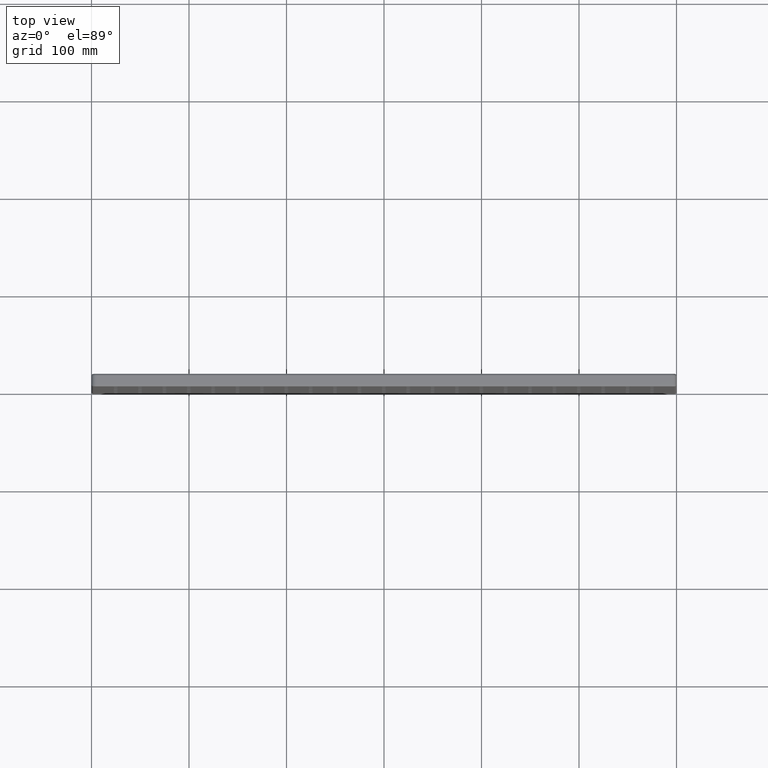
[diagram: clean part render]
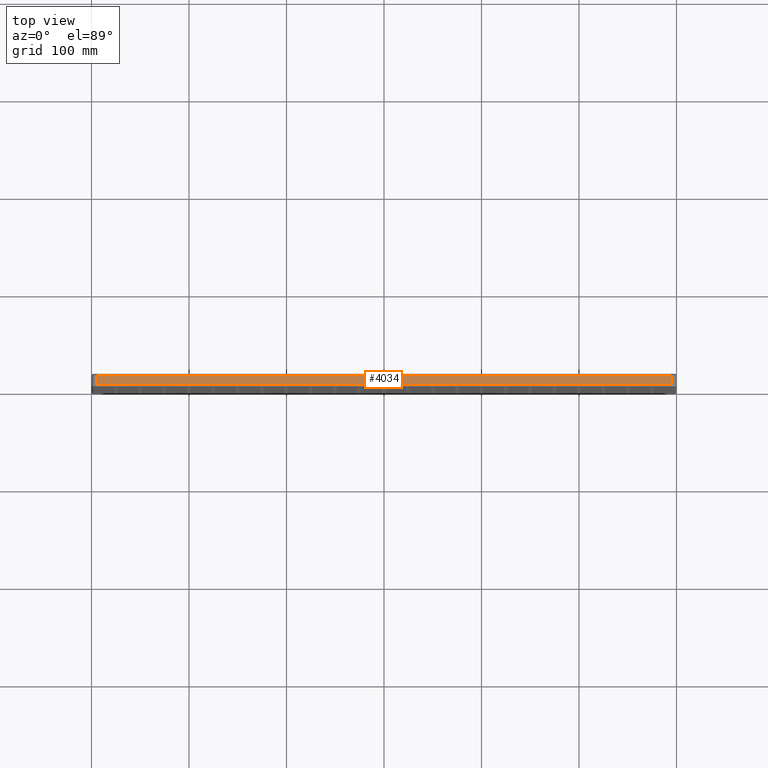
[diagram: same view with one face highlighted and labeled with its STEP entity id]
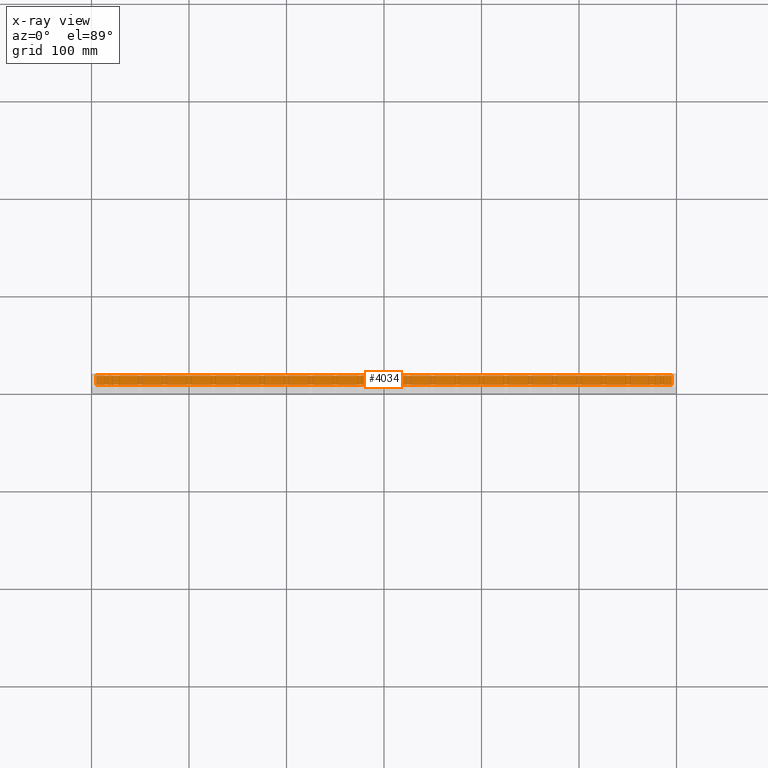
[diagram: x-ray of the same camera — body ghosted, the highlighted face saturated]
A machine part, top view. The second image highlights one B-rep face of the part: STEP entity #4034.
The next image is the same camera in x-ray: the body ghosted, the highlighted face saturated — about 0% of this face is hidden behind the body in this view.
In plain terms, the highlighted planar face has unit normal (0, 0, -1).
Its self-contained STEP definition (entity closure, byte-faithful):
#31 = DIRECTION ( 'NONE',  ( 1.000000000000000000, -0.0000000000000000000, 0.0000000000000000000 ) ) ;
#1191 = FACE_OUTER_BOUND ( 'NONE', #4557, .T. ) ;
#1450 = CARTESIAN_POINT ( 'NONE',  ( -295.0000000000000000, 11.00000000000000000, 225.0000000000000300 ) ) ;
#4034 = ADVANCED_FACE ( 'NONE', ( #1191 ), #4730, .F. ) ;
#4338 = LINE ( 'NONE', #11764, #23188 ) ;
#4557 = EDGE_LOOP ( 'NONE', ( #18867, #17643, #16777, #21494 ) ) ;
#4730 = PLANE ( 'NONE',  #26050 ) ;
#4834 = VECTOR ( 'NONE', #21923, 1000.000000000000000 ) ;
#5795 = VERTEX_POINT ( 'NONE', #30351 ) ;
#7513 = LINE ( 'NONE', #30209, #27857 ) ;
#8165 = EDGE_CURVE ( 'NONE', #5795, #26182, #21464, .T. ) ;
#9391 = CARTESIAN_POINT ( 'NONE',  ( -295.0000000000000000, 13.00000000000000000, 225.0000000000000300 ) ) ;
#11764 = CARTESIAN_POINT ( 'NONE',  ( -295.0000000000000000, 2.000000000000000000, 225.0000000000000300 ) ) ;
#15712 = DIRECTION ( 'NONE',  ( -0.0000000000000000000, -1.000000000000000000, -0.0000000000000000000 ) ) ;
#16777 = ORIENTED_EDGE ( 'NONE', *, *, #20760, .F. ) ;
#17643 = ORIENTED_EDGE ( 'NONE', *, *, #20149, .T. ) ;
#18352 = VERTEX_POINT ( 'NONE', #25054 ) ;
#18867 = ORIENTED_EDGE ( 'NONE', *, *, #30356, .T. ) ;
#19537 = CARTESIAN_POINT ( 'NONE',  ( -295.0000000000000000, 11.00000000000000000, 225.0000000000000300 ) ) ;
#20149 = EDGE_CURVE ( 'NONE', #26185, #18352, #4338, .T. ) ;
#20564 = CARTESIAN_POINT ( 'NONE',  ( 295.0000000000000000, 13.00000000000000000, 224.9999999999999100 ) ) ;
#20668 = DIRECTION ( 'NONE',  ( -0.0000000000000000000, -1.000000000000000000, -0.0000000000000000000 ) ) ;
#20760 = EDGE_CURVE ( 'NONE', #5795, #18352, #29439, .T. ) ;
#21152 = DIRECTION ( 'NONE',  ( 0.0000000000000000000, 0.0000000000000000000, -1.000000000000000000 ) ) ;
#21250 = DIRECTION ( 'NONE',  ( -1.000000000000000000, 0.0000000000000000000, -0.0000000000000000000 ) ) ;
#21464 = LINE ( 'NONE', #19537, #4834 ) ;
#21494 = ORIENTED_EDGE ( 'NONE', *, *, #8165, .T. ) ;
#21923 = DIRECTION ( 'NONE',  ( -1.000000000000000000, -0.0000000000000000000, -0.0000000000000000000 ) ) ;
#22747 = CARTESIAN_POINT ( 'NONE',  ( -295.0000000000000000, 2.000000000000003600, 225.0000000000000300 ) ) ;
#23188 = VECTOR ( 'NONE', #31, 1000.000000000000000 ) ;
#25054 = CARTESIAN_POINT ( 'NONE',  ( 295.0000000000000000, 2.000000000000003600, 224.9999999999999100 ) ) ;
#26050 = AXIS2_PLACEMENT_3D ( 'NONE', #9391, #21152, #21250 ) ;
#26116 = VECTOR ( 'NONE', #15712, 1000.000000000000000 ) ;
#26182 = VERTEX_POINT ( 'NONE', #1450 ) ;
#26185 = VERTEX_POINT ( 'NONE', #22747 ) ;
#27857 = VECTOR ( 'NONE', #20668, 1000.000000000000000 ) ;
#29439 = LINE ( 'NONE', #20564, #26116 ) ;
#30209 = CARTESIAN_POINT ( 'NONE',  ( -295.0000000000000000, 13.00000000000000000, 225.0000000000000300 ) ) ;
#30351 = CARTESIAN_POINT ( 'NONE',  ( 295.0000000000000000, 11.00000000000000000, 224.9999999999999100 ) ) ;
#30356 = EDGE_CURVE ( 'NONE', #26182, #26185, #7513, .T. ) ;